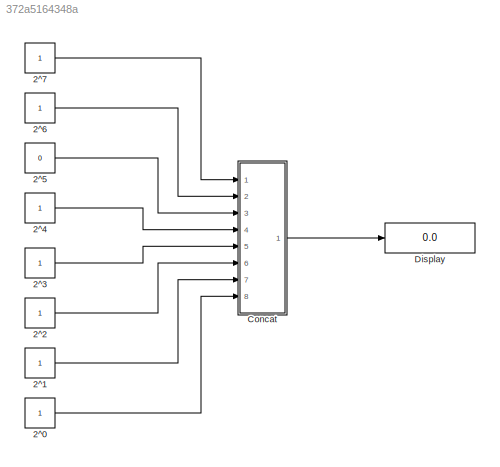
MODEL slx_372a5164348a
KIND model
CONFIG AbsTol = auto
CONFIG EnableMultiTasking = off
CONFIG FixedStep = auto
CONFIG MaxStep = auto
CONFIG MinStep = auto
CONFIG RelTol = 1e-3
CONFIG SampleTimeConstraint = Unconstrained
CONFIG Solver = VariableStepAuto
CONFIG SolverName = VariableStepAuto
CONFIG StartTime = 0.0
CONFIG StopTime = 10.0
BLOCK [Constant] 2^0
  OutDataTypeStr = boolean
BLOCK [Constant] 2^1
  OutDataTypeStr = boolean
BLOCK [Constant] 2^2
  OutDataTypeStr = boolean
BLOCK [Constant] 2^3
  OutDataTypeStr = boolean
BLOCK [Constant] 2^4
  OutDataTypeStr = boolean
BLOCK [Constant] 2^5
  OutDataTypeStr = boolean
  Value = 0
BLOCK [Constant] 2^6
  OutDataTypeStr = boolean
BLOCK [Constant] 2^7 
  OutDataTypeStr = boolean
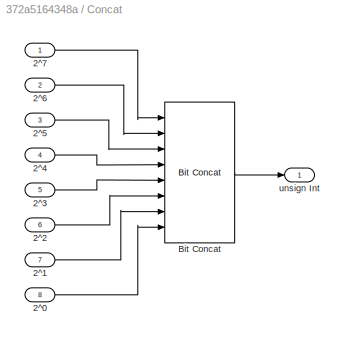
BLOCK [SubSystem] Concat
  Ports = [8, 1]
  RequestExecContextInheritance = off
BLOCK [Inport] Concat/2^0
  IconDisplay = Port number
  Port = 8
BLOCK [Inport] Concat/2^1
  IconDisplay = Port number
  Port = 7
BLOCK [Inport] Concat/2^2
  IconDisplay = Port number
  Port = 6
BLOCK [Inport] Concat/2^3
  IconDisplay = Port number
  Port = 5
BLOCK [Inport] Concat/2^4
  IconDisplay = Port number
  Port = 4
BLOCK [Inport] Concat/2^5
  IconDisplay = Port number
  Port = 3
BLOCK [Inport] Concat/2^6
  IconDisplay = Port number
  Port = 2
BLOCK [Inport] Concat/2^7
  IconDisplay = Port number
BLOCK [Reference] Concat/Bit Concat  REF=hdlsllib/Logic and Bit
Operations/Bit Concat
  Ports = [8, 1]
  SourceBlock = hdlsllib/Logic and Bit\nOperations/Bit Concat
  SourceProductBaseCode = HD
  SourceProductName = HDL Coder
  SourceType = Bit Concat
BLOCK [Outport] Concat/unsign Int
  IconDisplay = Port number
BLOCK [Display] Display
  Decimation = 1
  Format = decimal (Stored Integer)
  Ports = [1]
LINE 2^0:1 -> Concat:8
LINE 2^1:1 -> Concat:7
LINE 2^2:1 -> Concat:6
LINE 2^3:1 -> Concat:5
LINE 2^4:1 -> Concat:4
LINE 2^5:1 -> Concat:3
LINE 2^6:1 -> Concat:2
LINE 2^7 :1 -> Concat:1
LINE Concat/2^0:1 -> Concat/Bit Concat:8
LINE Concat/2^1:1 -> Concat/Bit Concat:7
LINE Concat/2^2:1 -> Concat/Bit Concat:6
LINE Concat/2^3:1 -> Concat/Bit Concat:5
LINE Concat/2^4:1 -> Concat/Bit Concat:4
LINE Concat/2^5:1 -> Concat/Bit Concat:3
LINE Concat/2^6:1 -> Concat/Bit Concat:2
LINE Concat/2^7:1 -> Concat/Bit Concat:1
LINE Concat/Bit Concat:1 -> Concat/unsign Int:1
LINE Concat:1 -> Display:1
